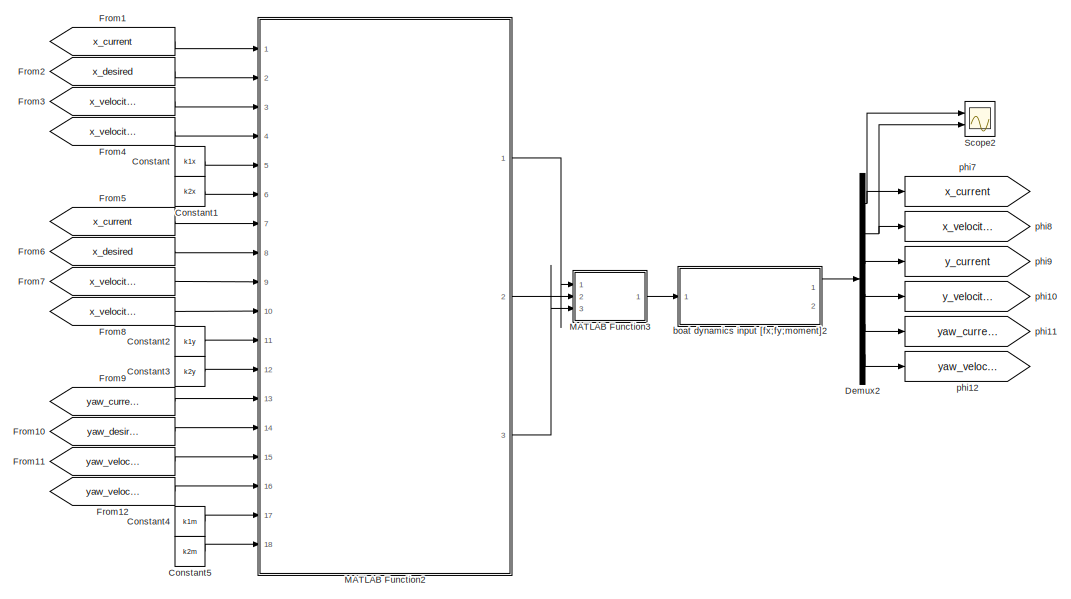
[diagram: root canvas - part 1/2, right side, full height]
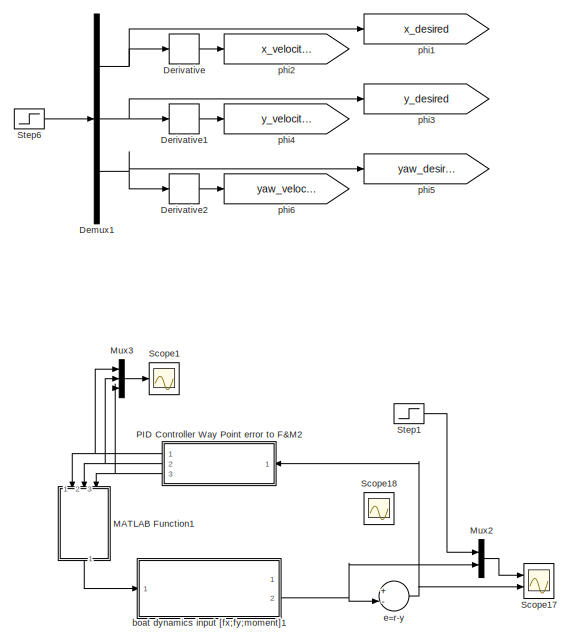
[diagram: root canvas - part 2/2, left side, full height]
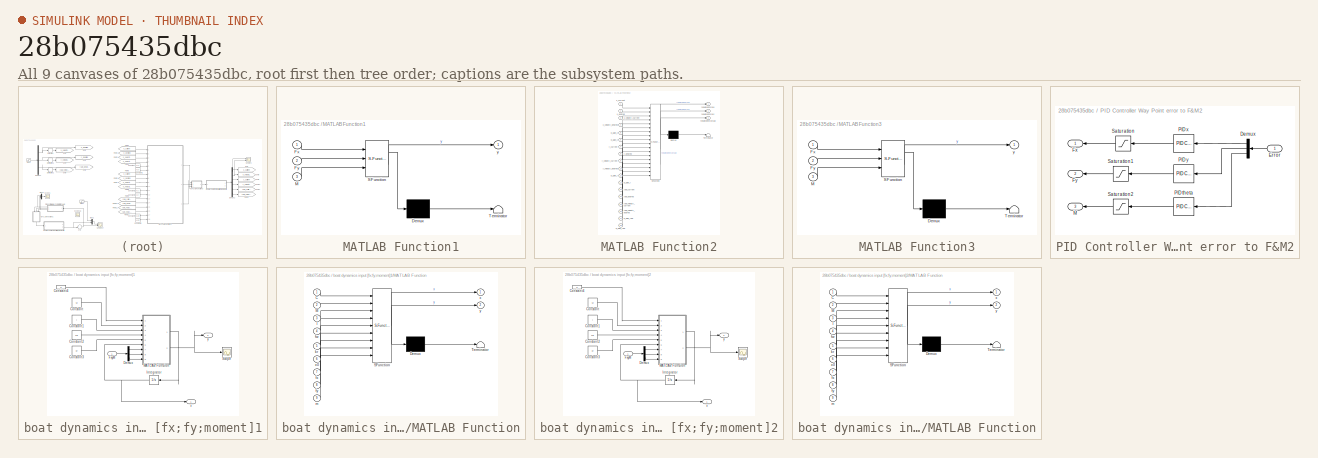
[diagram: thumbnail index - all 9 canvases of the model, root first then tree order]
MODEL slx_28b075435dbc
KIND model
BLOCK [Constant] Constant
  Value = k1x
BLOCK [Constant] Constant1
  Value = k2x
BLOCK [Constant] Constant2
  Value = k1y
BLOCK [Constant] Constant3
  Value = k2y
BLOCK [Constant] Constant4
  Value = k1m
BLOCK [Constant] Constant5
  Value = k2m
BLOCK [Demux] Demux1
  DisplayOption = bar
  Outputs = 3
  Ports = [1, 3]
BLOCK [Demux] Demux2
  DisplayOption = bar
  Outputs = 6
  Ports = [1, 6]
BLOCK [Derivative] Derivative
BLOCK [Derivative] Derivative1
BLOCK [Derivative] Derivative2
BLOCK [From] From1
  GotoTag = x_current
BLOCK [From] From10
  GotoTag = yaw_desired
BLOCK [From] From11
  GotoTag = yaw_velocity_current
BLOCK [From] From12
  GotoTag = yaw_velocity_desired
BLOCK [From] From2
  GotoTag = x_desired
BLOCK [From] From3
  GotoTag = x_velocity_current
BLOCK [From] From4
  GotoTag = x_velocity_desired
BLOCK [From] From5
  GotoTag = x_current
BLOCK [From] From6
  GotoTag = x_desired
BLOCK [From] From7
  GotoTag = x_velocity_current
BLOCK [From] From8
  GotoTag = x_velocity_desired
BLOCK [From] From9
  GotoTag = yaw_current
BLOCK [SubSystem] MATLAB Function1
  ErrorFcn = Stateflow.Translate.translate
  PermitHierarchicalResolution = ExplicitOnly
  Ports = [3, 1]
  RequestExecContextInheritance = off
  SFBlockType = MATLAB Function
  TreatAsAtomicUnit = on
BLOCK [Demux] MATLAB Function1/ Demux 
  Outputs = 1
  Ports = [1, 1]
BLOCK [S-Function] MATLAB Function1/ SFunction 
  EnableBusSupport = on
  FunctionName = sf_sfun
  PortCounts = [3 2]
  Ports = [3, 2]
  Tag = Stateflow S-Function PDTest 13
BLOCK [Terminator] MATLAB Function1/ Terminator 
BLOCK [Inport] MATLAB Function1/Fx
  IconDisplay = Port number
BLOCK [Inport] MATLAB Function1/Fy
  IconDisplay = Port number
  Port = 2
BLOCK [Inport] MATLAB Function1/M
  IconDisplay = Port number
  Port = 3
BLOCK [Outport] MATLAB Function1/y
  IconDisplay = Port number
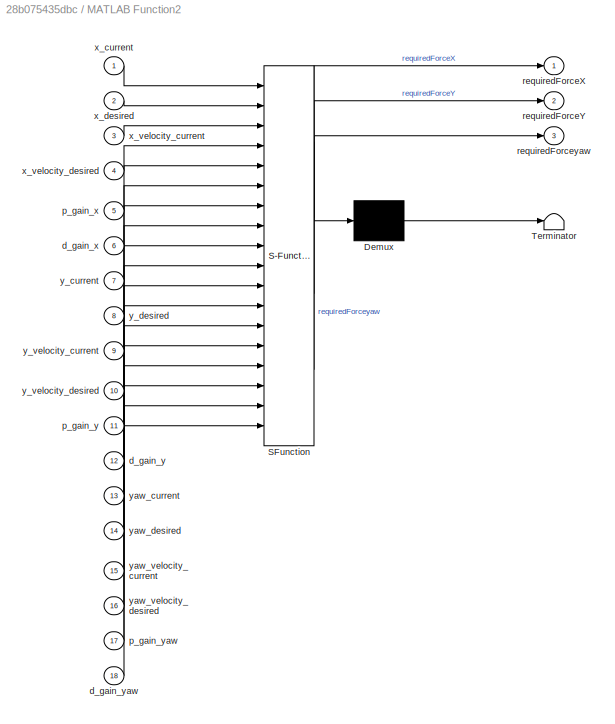
BLOCK [SubSystem] MATLAB Function2
  ErrorFcn = Stateflow.Translate.translate
  PermitHierarchicalResolution = ExplicitOnly
  Ports = [18, 3]
  RequestExecContextInheritance = off
  SFBlockType = MATLAB Function
  TreatAsAtomicUnit = on
BLOCK [Demux] MATLAB Function2/ Demux 
  Outputs = 1
  Ports = [1, 1]
BLOCK [S-Function] MATLAB Function2/ SFunction 
  EnableBusSupport = on
  FunctionName = sf_sfun
  PortCounts = [18 4]
  Ports = [18, 4]
  Tag = Stateflow S-Function PDTest 1
BLOCK [Terminator] MATLAB Function2/ Terminator 
BLOCK [Inport] MATLAB Function2/d_gain_x
  IconDisplay = Port number
  Port = 6
BLOCK [Inport] MATLAB Function2/d_gain_y
  IconDisplay = Port number
  Port = 12
BLOCK [Inport] MATLAB Function2/d_gain_yaw
  IconDisplay = Port number
  Port = 18
BLOCK [Inport] MATLAB Function2/p_gain_x
  IconDisplay = Port number
  Port = 5
BLOCK [Inport] MATLAB Function2/p_gain_y
  IconDisplay = Port number
  Port = 11
BLOCK [Inport] MATLAB Function2/p_gain_yaw
  IconDisplay = Port number
  Port = 17
BLOCK [Outport] MATLAB Function2/requiredForceX
  IconDisplay = Port number
BLOCK [Outport] MATLAB Function2/requiredForceY
  IconDisplay = Port number
  Port = 2
BLOCK [Outport] MATLAB Function2/requiredForceyaw
  IconDisplay = Port number
  Port = 3
BLOCK [Inport] MATLAB Function2/x_current
  IconDisplay = Port number
BLOCK [Inport] MATLAB Function2/x_desired
  IconDisplay = Port number
  Port = 2
BLOCK [Inport] MATLAB Function2/x_velocity_current
  IconDisplay = Port number
  Port = 3
BLOCK [Inport] MATLAB Function2/x_velocity_desired
  IconDisplay = Port number
  Port = 4
BLOCK [Inport] MATLAB Function2/y_current
  IconDisplay = Port number
  Port = 7
BLOCK [Inport] MATLAB Function2/y_desired
  IconDisplay = Port number
  Port = 8
BLOCK [Inport] MATLAB Function2/y_velocity_current
  IconDisplay = Port number
  Port = 9
BLOCK [Inport] MATLAB Function2/y_velocity_desired
  IconDisplay = Port number
  Port = 10
BLOCK [Inport] MATLAB Function2/yaw_current
  IconDisplay = Port number
  Port = 13
BLOCK [Inport] MATLAB Function2/yaw_desired
  IconDisplay = Port number
  Port = 14
BLOCK [Inport] MATLAB Function2/yaw_velocity_current
  IconDisplay = Port number
  Port = 15
BLOCK [Inport] MATLAB Function2/yaw_velocity_desired
  IconDisplay = Port number
  Port = 16
BLOCK [SubSystem] MATLAB Function3
  ErrorFcn = Stateflow.Translate.translate
  PermitHierarchicalResolution = ExplicitOnly
  Ports = [3, 1]
  RequestExecContextInheritance = off
  SFBlockType = MATLAB Function
  TreatAsAtomicUnit = on
BLOCK [Demux] MATLAB Function3/ Demux 
  Outputs = 1
  Ports = [1, 1]
BLOCK [S-Function] MATLAB Function3/ SFunction 
  EnableBusSupport = on
  FunctionName = sf_sfun
  PortCounts = [3 2]
  Ports = [3, 2]
  Tag = Stateflow S-Function PDTest 2
BLOCK [Terminator] MATLAB Function3/ Terminator 
BLOCK [Inport] MATLAB Function3/Fx
  IconDisplay = Port number
BLOCK [Inport] MATLAB Function3/Fy
  IconDisplay = Port number
  Port = 2
BLOCK [Inport] MATLAB Function3/M
  IconDisplay = Port number
  Port = 3
BLOCK [Outport] MATLAB Function3/y
  IconDisplay = Port number
BLOCK [Mux] Mux2
  DisplayOption = bar
  Inputs = 2
  Ports = [2, 1]
BLOCK [Mux] Mux3
  DisplayOption = bar
  Inputs = 3
  Ports = [3, 1]
BLOCK [SubSystem] PID Controller Way Point error to F&M2
  Ports = [1, 3]
  RequestExecContextInheritance = off
BLOCK [Demux] PID Controller Way Point error to F&M2/Demux
  DisplayOption = bar
  Outputs = 3
  Ports = [1, 3]
BLOCK [Inport] PID Controller Way Point error to F&M2/Error
  IconDisplay = Port number
BLOCK [Outport] PID Controller Way Point error to F&M2/Fx
  IconDisplay = Port number
BLOCK [Outport] PID Controller Way Point error to F&M2/Fy
  IconDisplay = Port number
  Port = 2
BLOCK [Outport] PID Controller Way Point error to F&M2/M
  IconDisplay = Port number
  Port = 3
BLOCK [Reference] PID Controller Way Point error to F&M2/PID theta  REF=simulink/Continuous/PID Controller
  AntiWindupMode = none
  Controller = PID
  D = k2m
  DOutDataTypeStr = Inherit: Inherit via internal rule
  DOutMax = []
  DOutMin = []
  DParamDataTypeStr = Inherit: Inherit via internal rule
  DParamMax = []
  DParamMin = []
  ExternalReset = none
  FilterContinuousStateAttributes = ''
  FilterMethod = Forward Euler
  FilterOutDataTypeStr = Inherit: Inherit via internal rule
  FilterOutMax = []
  FilterOutMin = []
  FilterRTWStateStorageClass = Auto
  FilterStateMustResolveToSignalObject = off
  Form = Parallel
  I = 0
  IOutDataTypeStr = Inherit: Inherit via internal rule
  IOutMax = []
  IOutMin = []
  IParamDataTypeStr = Inherit: Inherit via internal rule
  IParamMax = []
  IParamMin = []
  IgnoreLimit = off
  InitialConditionForFilter = 0
  InitialConditionForIntegrator = 0
  InitialConditionSource = internal
  IntegratorContinuousStateAttributes = ''
  IntegratorMethod = Forward Euler
  IntegratorOutDataTypeStr = Inherit: Inherit via internal rule
  IntegratorOutMax = []
  IntegratorOutMin = []
  IntegratorRTWStateStorageClass = Auto
  IntegratorStateMustResolveToSignalObject = off
  Kb = 1
  KbOutDataTypeStr = Inherit: Inherit via internal rule
  KbOutMax = []
  KbOutMin = []
  KbParamDataTypeStr = Inherit: Inherit via internal rule
  KbParamMax = []
  KbParamMin = []
  Kt = 1
  KtOutDataTypeStr = Inherit: Inherit via internal rule
  KtOutMax = []
  KtOutMin = []
  KtParamDataTypeStr = Inherit: Inherit via internal rule
  KtParamMax = []
  KtParamMin = []
  LimitOutput = off
  LinearizeAsGain = off
  LockScale = off
  LowerSaturationLimit = -inf
  N = 3.646824066771
  NOutDataTypeStr = Inherit: Inherit via internal rule
  NOutMax = []
  NOutMin = []
  NParamDataTypeStr = Inherit: Inherit via internal rule
  NParamMax = []
  NParamMin = []
  P = k1m
  POutDataTypeStr = Inherit: Inherit via internal rule
  POutMax = []
  POutMin = []
  PParamDataTypeStr = Inherit: Inherit via internal rule
  PParamMax = []
  PParamMin = []
  Ports = [1, 1]
  RndMeth = Floor
  SampleTime = 1
  SaturateOnIntegerOverflow = off
  SaturationOutDataTypeStr = Inherit: Same as input
  SaturationOutMax = []
  SaturationOutMin = []
  SourceBlock = simulink/Continuous/PID Controller
  SourceType = PID 1dof
  SumAccumDataTypeStr = Inherit: Inherit via internal rule
  SumDAccumDataTypeStr = Inherit: Inherit via internal rule
  SumDOutDataTypeStr = Inherit: Inherit via internal rule
  SumDOutMax = []
  SumDOutMin = []
  SumI1AccumDataTypeStr = Inherit: Inherit via internal rule
  SumI1OutDataTypeStr = Inherit: Inherit via internal rule
  SumI1OutMax = []
  SumI1OutMin = []
  SumI2AccumDataTypeStr = Inherit: Inherit via internal rule
  SumI2OutDataTypeStr = Inherit: Inherit via internal rule
  SumI2OutMax = []
  SumI2OutMin = []
  SumI3AccumDataTypeStr = Inherit: Inherit via internal rule
  SumI3OutDataTypeStr = Inherit: Inherit via internal rule
  SumI3OutMax = []
  SumI3OutMin = []
  SumOutDataTypeStr = Inherit: Inherit via internal rule
  SumOutMax = []
  SumOutMin = []
  TimeDomain = Continuous-time
  TrackingMode = off
  UpperSaturationLimit = inf
  ZeroCross = on
BLOCK [Reference] PID Controller Way Point error to F&M2/PID x  REF=simulink/Continuous/PID Controller
  AntiWindupMode = none
  Controller = PID
  D = k2x
  DOutDataTypeStr = Inherit: Inherit via internal rule
  DOutMax = []
  DOutMin = []
  DParamDataTypeStr = Inherit: Inherit via internal rule
  DParamMax = []
  DParamMin = []
  ExternalReset = none
  FilterContinuousStateAttributes = ''
  FilterMethod = Forward Euler
  FilterOutDataTypeStr = Inherit: Inherit via internal rule
  FilterOutMax = []
  FilterOutMin = []
  FilterRTWStateStorageClass = Auto
  FilterStateMustResolveToSignalObject = off
  Form = Parallel
  I = 0
  IOutDataTypeStr = Inherit: Inherit via internal rule
  IOutMax = []
  IOutMin = []
  IParamDataTypeStr = Inherit: Inherit via internal rule
  IParamMax = []
  IParamMin = []
  IgnoreLimit = off
  InitialConditionForFilter = 0
  InitialConditionForIntegrator = 0
  InitialConditionSource = internal
  IntegratorContinuousStateAttributes = ''
  IntegratorMethod = Forward Euler
  IntegratorOutDataTypeStr = Inherit: Inherit via internal rule
  IntegratorOutMax = []
  IntegratorOutMin = []
  IntegratorRTWStateStorageClass = Auto
  IntegratorStateMustResolveToSignalObject = off
  Kb = 1
  KbOutDataTypeStr = Inherit: Inherit via internal rule
  KbOutMax = []
  KbOutMin = []
  KbParamDataTypeStr = Inherit: Inherit via internal rule
  KbParamMax = []
  KbParamMin = []
  Kt = 1
  KtOutDataTypeStr = Inherit: Inherit via internal rule
  KtOutMax = []
  KtOutMin = []
  KtParamDataTypeStr = Inherit: Inherit via internal rule
  KtParamMax = []
  KtParamMin = []
  LimitOutput = off
  LinearizeAsGain = off
  LockScale = off
  LowerSaturationLimit = -inf
  N = 3.646824066771
  NOutDataTypeStr = Inherit: Inherit via internal rule
  NOutMax = []
  NOutMin = []
  NParamDataTypeStr = Inherit: Inherit via internal rule
  NParamMax = []
  NParamMin = []
  P = k1x
  POutDataTypeStr = Inherit: Inherit via internal rule
  POutMax = []
  POutMin = []
  PParamDataTypeStr = Inherit: Inherit via internal rule
  PParamMax = []
  PParamMin = []
  Ports = [1, 1]
  RndMeth = Floor
  SampleTime = 1
  SaturateOnIntegerOverflow = off
  SaturationOutDataTypeStr = Inherit: Same as input
  SaturationOutMax = []
  SaturationOutMin = []
  SourceBlock = simulink/Continuous/PID Controller
  SourceType = PID 1dof
  SumAccumDataTypeStr = Inherit: Inherit via internal rule
  SumDAccumDataTypeStr = Inherit: Inherit via internal rule
  SumDOutDataTypeStr = Inherit: Inherit via internal rule
  SumDOutMax = []
  SumDOutMin = []
  SumI1AccumDataTypeStr = Inherit: Inherit via internal rule
  SumI1OutDataTypeStr = Inherit: Inherit via internal rule
  SumI1OutMax = []
  SumI1OutMin = []
  SumI2AccumDataTypeStr = Inherit: Inherit via internal rule
  SumI2OutDataTypeStr = Inherit: Inherit via internal rule
  SumI2OutMax = []
  SumI2OutMin = []
  SumI3AccumDataTypeStr = Inherit: Inherit via internal rule
  SumI3OutDataTypeStr = Inherit: Inherit via internal rule
  SumI3OutMax = []
  SumI3OutMin = []
  SumOutDataTypeStr = Inherit: Inherit via internal rule
  SumOutMax = []
  SumOutMin = []
  TimeDomain = Continuous-time
  TrackingMode = off
  UpperSaturationLimit = inf
  ZeroCross = on
BLOCK [Reference] PID Controller Way Point error to F&M2/PID y  REF=simulink/Continuous/PID Controller
  AntiWindupMode = none
  Controller = PID
  D = k2y
  DOutDataTypeStr = Inherit: Inherit via internal rule
  DOutMax = []
  DOutMin = []
  DParamDataTypeStr = Inherit: Inherit via internal rule
  DParamMax = []
  DParamMin = []
  ExternalReset = none
  FilterContinuousStateAttributes = ''
  FilterMethod = Forward Euler
  FilterOutDataTypeStr = Inherit: Inherit via internal rule
  FilterOutMax = []
  FilterOutMin = []
  FilterRTWStateStorageClass = Auto
  FilterStateMustResolveToSignalObject = off
  Form = Parallel
  I = 0
  IOutDataTypeStr = Inherit: Inherit via internal rule
  IOutMax = []
  IOutMin = []
  IParamDataTypeStr = Inherit: Inherit via internal rule
  IParamMax = []
  IParamMin = []
  IgnoreLimit = off
  InitialConditionForFilter = 0
  InitialConditionForIntegrator = 0
  InitialConditionSource = internal
  IntegratorContinuousStateAttributes = ''
  IntegratorMethod = Forward Euler
  IntegratorOutDataTypeStr = Inherit: Inherit via internal rule
  IntegratorOutMax = []
  IntegratorOutMin = []
  IntegratorRTWStateStorageClass = Auto
  IntegratorStateMustResolveToSignalObject = off
  Kb = 1
  KbOutDataTypeStr = Inherit: Inherit via internal rule
  KbOutMax = []
  KbOutMin = []
  KbParamDataTypeStr = Inherit: Inherit via internal rule
  KbParamMax = []
  KbParamMin = []
  Kt = 1
  KtOutDataTypeStr = Inherit: Inherit via internal rule
  KtOutMax = []
  KtOutMin = []
  KtParamDataTypeStr = Inherit: Inherit via internal rule
  KtParamMax = []
  KtParamMin = []
  LimitOutput = off
  LinearizeAsGain = off
  LockScale = off
  LowerSaturationLimit = -inf
  N = 4
  NOutDataTypeStr = Inherit: Inherit via internal rule
  NOutMax = []
  NOutMin = []
  NParamDataTypeStr = Inherit: Inherit via internal rule
  NParamMax = []
  NParamMin = []
  P = k1y
  POutDataTypeStr = Inherit: Inherit via internal rule
  POutMax = []
  POutMin = []
  PParamDataTypeStr = Inherit: Inherit via internal rule
  PParamMax = []
  PParamMin = []
  Ports = [1, 1]
  RndMeth = Floor
  SampleTime = 1
  SaturateOnIntegerOverflow = off
  SaturationOutDataTypeStr = Inherit: Same as input
  SaturationOutMax = []
  SaturationOutMin = []
  SourceBlock = simulink/Continuous/PID Controller
  SourceType = PID 1dof
  SumAccumDataTypeStr = Inherit: Inherit via internal rule
  SumDAccumDataTypeStr = Inherit: Inherit via internal rule
  SumDOutDataTypeStr = Inherit: Inherit via internal rule
  SumDOutMax = []
  SumDOutMin = []
  SumI1AccumDataTypeStr = Inherit: Inherit via internal rule
  SumI1OutDataTypeStr = Inherit: Inherit via internal rule
  SumI1OutMax = []
  SumI1OutMin = []
  SumI2AccumDataTypeStr = Inherit: Inherit via internal rule
  SumI2OutDataTypeStr = Inherit: Inherit via internal rule
  SumI2OutMax = []
  SumI2OutMin = []
  SumI3AccumDataTypeStr = Inherit: Inherit via internal rule
  SumI3OutDataTypeStr = Inherit: Inherit via internal rule
  SumI3OutMax = []
  SumI3OutMin = []
  SumOutDataTypeStr = Inherit: Inherit via internal rule
  SumOutMax = []
  SumOutMin = []
  TimeDomain = Continuous-time
  TrackingMode = off
  UpperSaturationLimit = inf
  ZeroCross = on
BLOCK [Saturate] PID Controller Way Point error to F&M2/Saturation
  InputPortMap = u0
  LowerLimit = -100
  Ports = [1, 1]
  UpperLimit = 100
BLOCK [Saturate] PID Controller Way Point error to F&M2/Saturation1
  InputPortMap = u0
  LowerLimit = -100
  Ports = [1, 1]
  UpperLimit = 100
BLOCK [Saturate] PID Controller Way Point error to F&M2/Saturation2
  InputPortMap = u0
  LowerLimit = -50
  Ports = [1, 1]
  UpperLimit = 50
BLOCK [Scope] Scope1
  DataFormat = StructureWithTime
  Floating = off
  NumInputPorts = 1
  Ports = [1]
  SampleTime = 0
  SaveName = ScopeData4
  ShowLegends = off
  YMax = 0
  YMin = -0.014
  ZoomMode = yonly
BLOCK [Scope] Scope17
  DataFormat = StructureWithTime
  Floating = off
  LimitDataPoints = off
  NumInputPorts = 2
  Ports = [2]
  SampleTime = 0
  SaveName = ScopeData1
  ShowLegends = off
  YMax = 70~17
  YMin = 0~0
  ZoomMode = xonly
BLOCK [Scope] Scope18
  DataFormat = StructureWithTime
  Floating = off
  NumInputPorts = 1
  Ports = [1]
  SampleTime = 0
  SaveName = ScopeData2
  ShowLegends = off
  ZoomMode = yonly
BLOCK [Scope] Scope2
  DataFormat = StructureWithTime
  Floating = off
  LimitDataPoints = off
  NumInputPorts = 2
  Ports = [2]
  SampleTime = 0
  SaveName = ScopeData3
  ShowLegends = off
  YMax = 70~17
  YMin = 0~0
  ZoomMode = xonly
BLOCK [Step] Step1
  After = [10;0;0]
  Before = [0;0;0]
  SampleTime = 0
BLOCK [Step] Step6
  After = [10;0;0]
  Before = [0;0;0]
  SampleTime = 0
BLOCK [SubSystem] boat dynamics input [fx;fy;moment]1
  Ports = [1, 2]
  RequestExecContextInheritance = off
BLOCK [Constant] boat dynamics input [fx;fy;moment]1/Constant
  Value = M
BLOCK [Constant] boat dynamics input [fx;fy;moment]1/Constant1
  Value = I
BLOCK [Constant] boat dynamics input [fx;fy;moment]1/Constant2
  Value = fw
BLOCK [Constant] boat dynamics input [fx;fy;moment]1/Constant3
  Value = kr
BLOCK [Constant] boat dynamics input [fx;fy;moment]1/Constant4
  Value = C
BLOCK [Demux] boat dynamics input [fx;fy;moment]1/Demux
  DisplayOption = bar
  Outputs = 3
  Ports = [1, 3]
BLOCK [Inport] boat dynamics input [fx;fy;moment]1/FxyM
  IconDisplay = Port number
BLOCK [Integrator] boat dynamics input [fx;fy;moment]1/Integrator
  InitialCondition = [0 0 0 0 0 0]
  Ports = [1, 1]
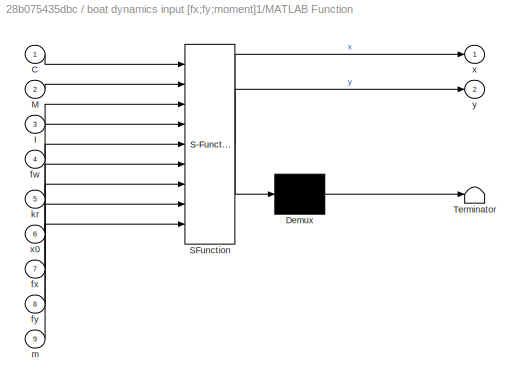
BLOCK [SubSystem] boat dynamics input [fx;fy;moment]1/MATLAB Function
  ErrorFcn = Stateflow.Translate.translate
  PermitHierarchicalResolution = ExplicitOnly
  Ports = [9, 2]
  RequestExecContextInheritance = off
  SFBlockType = MATLAB Function
  TreatAsAtomicUnit = on
BLOCK [Demux] boat dynamics input [fx;fy;moment]1/MATLAB Function/ Demux 
  Outputs = 1
  Ports = [1, 1]
BLOCK [S-Function] boat dynamics input [fx;fy;moment]1/MATLAB Function/ SFunction 
  EnableBusSupport = on
  FunctionName = sf_sfun
  PortCounts = [9 3]
  Ports = [9, 3]
  Tag = Stateflow S-Function PDTest 14
BLOCK [Terminator] boat dynamics input [fx;fy;moment]1/MATLAB Function/ Terminator 
BLOCK [Inport] boat dynamics input [fx;fy;moment]1/MATLAB Function/C
  IconDisplay = Port number
BLOCK [Inport] boat dynamics input [fx;fy;moment]1/MATLAB Function/I
  IconDisplay = Port number
  Port = 3
BLOCK [Inport] boat dynamics input [fx;fy;moment]1/MATLAB Function/M
  IconDisplay = Port number
  Port = 2
BLOCK [Inport] boat dynamics input [fx;fy;moment]1/MATLAB Function/fw
  IconDisplay = Port number
  Port = 4
BLOCK [Inport] boat dynamics input [fx;fy;moment]1/MATLAB Function/fx
  IconDisplay = Port number
  Port = 7
BLOCK [Inport] boat dynamics input [fx;fy;moment]1/MATLAB Function/fy
  IconDisplay = Port number
  Port = 8
BLOCK [Inport] boat dynamics input [fx;fy;moment]1/MATLAB Function/kr
  IconDisplay = Port number
  Port = 5
BLOCK [Inport] boat dynamics input [fx;fy;moment]1/MATLAB Function/m
  IconDisplay = Port number
  Port = 9
BLOCK [Outport] boat dynamics input [fx;fy;moment]1/MATLAB Function/x
  IconDisplay = Port number
BLOCK [Inport] boat dynamics input [fx;fy;moment]1/MATLAB Function/x0
  IconDisplay = Port number
  Port = 6
BLOCK [Outport] boat dynamics input [fx;fy;moment]1/MATLAB Function/y
  IconDisplay = Port number
  Port = 2
BLOCK [Scope] boat dynamics input [fx;fy;moment]1/Scope
  DataFormat = StructureWithTime
  Floating = off
  NumInputPorts = 1
  Ports = [1]
  SampleTime = 0
  ShowLegends = off
BLOCK [Outport] boat dynamics input [fx;fy;moment]1/x
  IconDisplay = Port number
BLOCK [Outport] boat dynamics input [fx;fy;moment]1/y
  IconDisplay = Port number
  Port = 2
BLOCK [SubSystem] boat dynamics input [fx;fy;moment]2
  Ports = [1, 2]
  RequestExecContextInheritance = off
BLOCK [Constant] boat dynamics input [fx;fy;moment]2/Constant
  Value = M
BLOCK [Constant] boat dynamics input [fx;fy;moment]2/Constant1
  Value = I
BLOCK [Constant] boat dynamics input [fx;fy;moment]2/Constant2
  Value = fw
BLOCK [Constant] boat dynamics input [fx;fy;moment]2/Constant3
  Value = kr
BLOCK [Constant] boat dynamics input [fx;fy;moment]2/Constant4
  Value = C
BLOCK [Demux] boat dynamics input [fx;fy;moment]2/Demux
  DisplayOption = bar
  Outputs = 3
  Ports = [1, 3]
BLOCK [Inport] boat dynamics input [fx;fy;moment]2/FxyM
  IconDisplay = Port number
BLOCK [Integrator] boat dynamics input [fx;fy;moment]2/Integrator
  InitialCondition = [0 0 0 0 0 0]
  Ports = [1, 1]
BLOCK [SubSystem] boat dynamics input [fx;fy;moment]2/MATLAB Function
  ErrorFcn = Stateflow.Translate.translate
  PermitHierarchicalResolution = ExplicitOnly
  Ports = [9, 2]
  RequestExecContextInheritance = off
  SFBlockType = MATLAB Function
  TreatAsAtomicUnit = on
BLOCK [Demux] boat dynamics input [fx;fy;moment]2/MATLAB Function/ Demux 
  Outputs = 1
  Ports = [1, 1]
BLOCK [S-Function] boat dynamics input [fx;fy;moment]2/MATLAB Function/ SFunction 
  EnableBusSupport = on
  FunctionName = sf_sfun
  PortCounts = [9 3]
  Ports = [9, 3]
  Tag = Stateflow S-Function PDTest 3
BLOCK [Terminator] boat dynamics input [fx;fy;moment]2/MATLAB Function/ Terminator 
BLOCK [Inport] boat dynamics input [fx;fy;moment]2/MATLAB Function/C
  IconDisplay = Port number
BLOCK [Inport] boat dynamics input [fx;fy;moment]2/MATLAB Function/I
  IconDisplay = Port number
  Port = 3
BLOCK [Inport] boat dynamics input [fx;fy;moment]2/MATLAB Function/M
  IconDisplay = Port number
  Port = 2
BLOCK [Inport] boat dynamics input [fx;fy;moment]2/MATLAB Function/fw
  IconDisplay = Port number
  Port = 4
BLOCK [Inport] boat dynamics input [fx;fy;moment]2/MATLAB Function/fx
  IconDisplay = Port number
  Port = 7
BLOCK [Inport] boat dynamics input [fx;fy;moment]2/MATLAB Function/fy
  IconDisplay = Port number
  Port = 8
BLOCK [Inport] boat dynamics input [fx;fy;moment]2/MATLAB Function/kr
  IconDisplay = Port number
  Port = 5
BLOCK [Inport] boat dynamics input [fx;fy;moment]2/MATLAB Function/m
  IconDisplay = Port number
  Port = 9
BLOCK [Outport] boat dynamics input [fx;fy;moment]2/MATLAB Function/x
  IconDisplay = Port number
BLOCK [Inport] boat dynamics input [fx;fy;moment]2/MATLAB Function/x0
  IconDisplay = Port number
  Port = 6
BLOCK [Outport] boat dynamics input [fx;fy;moment]2/MATLAB Function/y
  IconDisplay = Port number
  Port = 2
BLOCK [Scope] boat dynamics input [fx;fy;moment]2/Scope
  DataFormat = StructureWithTime
  Floating = off
  NumInputPorts = 1
  Ports = [1]
  SampleTime = 0
  ShowLegends = off
BLOCK [Outport] boat dynamics input [fx;fy;moment]2/x
  IconDisplay = Port number
BLOCK [Outport] boat dynamics input [fx;fy;moment]2/y
  IconDisplay = Port number
  Port = 2
BLOCK [Sum] e=r-y
  InputSameDT = off
  Inputs = +-
  OutDataTypeStr = Inherit: Inherit via internal rule
  Ports = [2, 1]
  SaturateOnIntegerOverflow = off
BLOCK [Goto] phi1
  GotoTag = x_desired
BLOCK [Goto] phi10
  GotoTag = y_velocity_current
BLOCK [Goto] phi11
  GotoTag = yaw_current
BLOCK [Goto] phi12
  GotoTag = yaw_velocity_current
BLOCK [Goto] phi2
  GotoTag = x_velocity_desired
BLOCK [Goto] phi3
  GotoTag = y_desired
BLOCK [Goto] phi4
  GotoTag = y_velocity_desired
BLOCK [Goto] phi5
  GotoTag = yaw_desired
BLOCK [Goto] phi6
  GotoTag = yaw_velocity_desired
BLOCK [Goto] phi7
  GotoTag = x_current
BLOCK [Goto] phi8
  GotoTag = x_velocity_current
BLOCK [Goto] phi9
  GotoTag = y_current
LINE Constant1:1 -> MATLAB Function2:6
LINE Constant2:1 -> MATLAB Function2:11
LINE Constant3:1 -> MATLAB Function2:12
LINE Constant4:1 -> MATLAB Function2:17
LINE Constant5:1 -> MATLAB Function2:18
LINE Constant:1 -> MATLAB Function2:5
NET Demux1:1 -> Derivative:1, phi1:1
NET Demux1:2 -> Derivative1:1, phi3:1
NET Demux1:3 -> Derivative2:1, phi5:1
NET Demux2:1 -> Scope2:1, phi7:1
NET Demux2:2 -> Scope2:2, phi8:1
LINE Demux2:3 -> phi9:1
LINE Demux2:4 -> phi10:1
LINE Demux2:5 -> phi11:1
LINE Demux2:6 -> phi12:1
LINE Derivative1:1 -> phi4:1
LINE Derivative2:1 -> phi6:1
LINE Derivative:1 -> phi2:1
LINE From10:1 -> MATLAB Function2:14
LINE From11:1 -> MATLAB Function2:15
LINE From12:1 -> MATLAB Function2:16
LINE From1:1 -> MATLAB Function2:1
LINE From2:1 -> MATLAB Function2:2
LINE From3:1 -> MATLAB Function2:3
LINE From4:1 -> MATLAB Function2:4
LINE From5:1 -> MATLAB Function2:7
LINE From6:1 -> MATLAB Function2:8
LINE From7:1 -> MATLAB Function2:9
LINE From8:1 -> MATLAB Function2:10
LINE From9:1 -> MATLAB Function2:13
LINE MATLAB Function1:1 -> boat dynamics input [fx;fy;moment]1:1
LINE MATLAB Function2:1 -> MATLAB Function3:1
LINE MATLAB Function2:2 -> MATLAB Function3:2
LINE MATLAB Function2:3 -> MATLAB Function3:3
LINE MATLAB Function3:1 -> boat dynamics input [fx;fy;moment]2:1
LINE Mux2:1 -> Scope17:1
LINE Mux3:1 -> Scope1:1
LINE PID Controller Way Point error to F&M2/Demux:1 -> PID Controller Way Point error to F&M2/PID x:1
LINE PID Controller Way Point error to F&M2/Demux:2 -> PID Controller Way Point error to F&M2/PID y:1
LINE PID Controller Way Point error to F&M2/Demux:3 -> PID Controller Way Point error to F&M2/PID theta:1
LINE PID Controller Way Point error to F&M2/Error:1 -> PID Controller Way Point error to F&M2/Demux:1
LINE PID Controller Way Point error to F&M2/PID theta:1 -> PID Controller Way Point error to F&M2/Saturation2:1
LINE PID Controller Way Point error to F&M2/PID x:1 -> PID Controller Way Point error to F&M2/Saturation:1
LINE PID Controller Way Point error to F&M2/PID y:1 -> PID Controller Way Point error to F&M2/Saturation1:1
LINE PID Controller Way Point error to F&M2/Saturation1:1 -> PID Controller Way Point error to F&M2/Fy:1
LINE PID Controller Way Point error to F&M2/Saturation2:1 -> PID Controller Way Point error to F&M2/M:1
LINE PID Controller Way Point error to F&M2/Saturation:1 -> PID Controller Way Point error to F&M2/Fx:1
NET PID Controller Way Point error to F&M2:1 -> MATLAB Function1:1, Mux3:1
NET PID Controller Way Point error to F&M2:2 -> MATLAB Function1:2, Mux3:2
NET PID Controller Way Point error to F&M2:3 -> MATLAB Function1:3, Mux3:3
LINE Step1:1 -> Mux2:1
LINE Step6:1 -> Demux1:1
LINE boat dynamics input [fx;fy;moment]1/Constant1:1 -> boat dynamics input [fx;fy;moment]1/MATLAB Function:3
LINE boat dynamics input [fx;fy;moment]1/Constant2:1 -> boat dynamics input [fx;fy;moment]1/MATLAB Function:4
LINE boat dynamics input [fx;fy;moment]1/Constant3:1 -> boat dynamics input [fx;fy;moment]1/MATLAB Function:5
LINE boat dynamics input [fx;fy;moment]1/Constant4:1 -> boat dynamics input [fx;fy;moment]1/MATLAB Function:1
LINE boat dynamics input [fx;fy;moment]1/Constant:1 -> boat dynamics input [fx;fy;moment]1/MATLAB Function:2
LINE boat dynamics input [fx;fy;moment]1/Demux:1 -> boat dynamics input [fx;fy;moment]1/MATLAB Function:7
LINE boat dynamics input [fx;fy;moment]1/Demux:2 -> boat dynamics input [fx;fy;moment]1/MATLAB Function:8
LINE boat dynamics input [fx;fy;moment]1/Demux:3 -> boat dynamics input [fx;fy;moment]1/MATLAB Function:9
LINE boat dynamics input [fx;fy;moment]1/FxyM:1 -> boat dynamics input [fx;fy;moment]1/Demux:1
NET boat dynamics input [fx;fy;moment]1/Integrator:1 -> boat dynamics input [fx;fy;moment]1/MATLAB Function:6, boat dynamics input [fx;fy;moment]1/x:1
LINE boat dynamics input [fx;fy;moment]1/MATLAB Function:1 -> boat dynamics input [fx;fy;moment]1/Integrator:1
NET boat dynamics input [fx;fy;moment]1/MATLAB Function:2 -> boat dynamics input [fx;fy;moment]1/Scope:1, boat dynamics input [fx;fy;moment]1/y:1
NET boat dynamics input [fx;fy;moment]1:2 -> Mux2:2, e=r-y:2
LINE boat dynamics input [fx;fy;moment]2/Constant1:1 -> boat dynamics input [fx;fy;moment]2/MATLAB Function:3
LINE boat dynamics input [fx;fy;moment]2/Constant2:1 -> boat dynamics input [fx;fy;moment]2/MATLAB Function:4
LINE boat dynamics input [fx;fy;moment]2/Constant3:1 -> boat dynamics input [fx;fy;moment]2/MATLAB Function:5
LINE boat dynamics input [fx;fy;moment]2/Constant4:1 -> boat dynamics input [fx;fy;moment]2/MATLAB Function:1
LINE boat dynamics input [fx;fy;moment]2/Constant:1 -> boat dynamics input [fx;fy;moment]2/MATLAB Function:2
LINE boat dynamics input [fx;fy;moment]2/Demux:1 -> boat dynamics input [fx;fy;moment]2/MATLAB Function:7
LINE boat dynamics input [fx;fy;moment]2/Demux:2 -> boat dynamics input [fx;fy;moment]2/MATLAB Function:8
LINE boat dynamics input [fx;fy;moment]2/Demux:3 -> boat dynamics input [fx;fy;moment]2/MATLAB Function:9
LINE boat dynamics input [fx;fy;moment]2/FxyM:1 -> boat dynamics input [fx;fy;moment]2/Demux:1
NET boat dynamics input [fx;fy;moment]2/Integrator:1 -> boat dynamics input [fx;fy;moment]2/MATLAB Function:6, boat dynamics input [fx;fy;moment]2/x:1
LINE boat dynamics input [fx;fy;moment]2/MATLAB Function:1 -> boat dynamics input [fx;fy;moment]2/Integrator:1
NET boat dynamics input [fx;fy;moment]2/MATLAB Function:2 -> boat dynamics input [fx;fy;moment]2/Scope:1, boat dynamics input [fx;fy;moment]2/y:1
LINE boat dynamics input [fx;fy;moment]2:1 -> Demux2:1
NET e=r-y:1 -> PID Controller Way Point error to F&M2:1, Scope17:2
note: NET lines group one-source signal fan-out (src -> all destinations, sorted); 1:1 wires keep LINE
